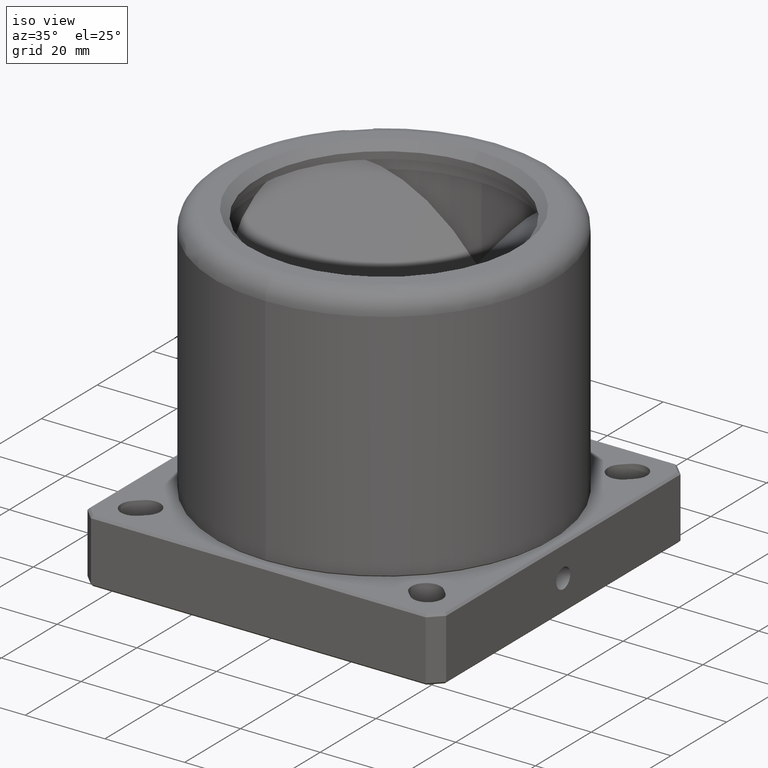
[diagram: clean part render]
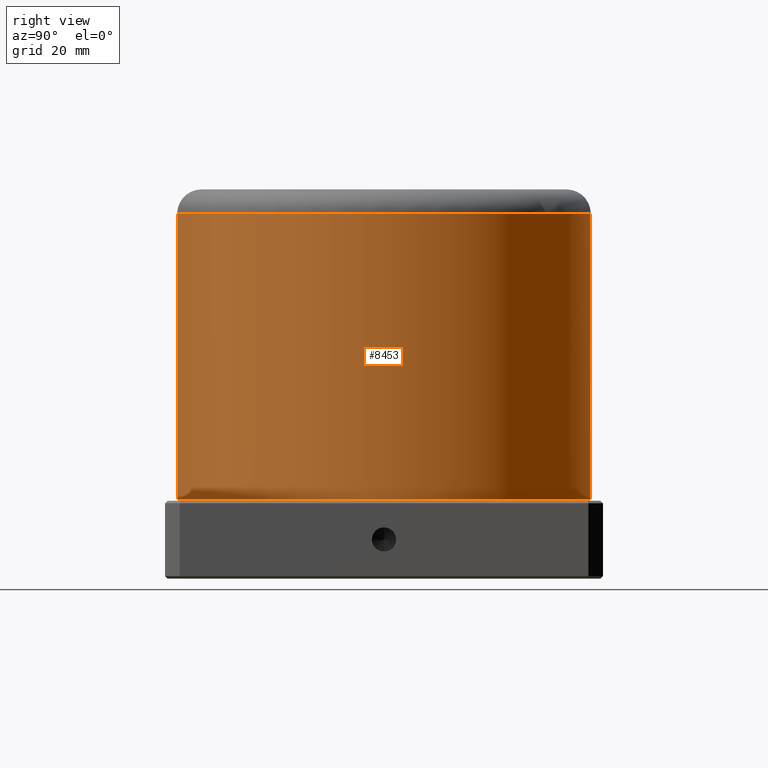
[diagram: tour spotlight — one face highlighted and labeled with its STEP entity id]
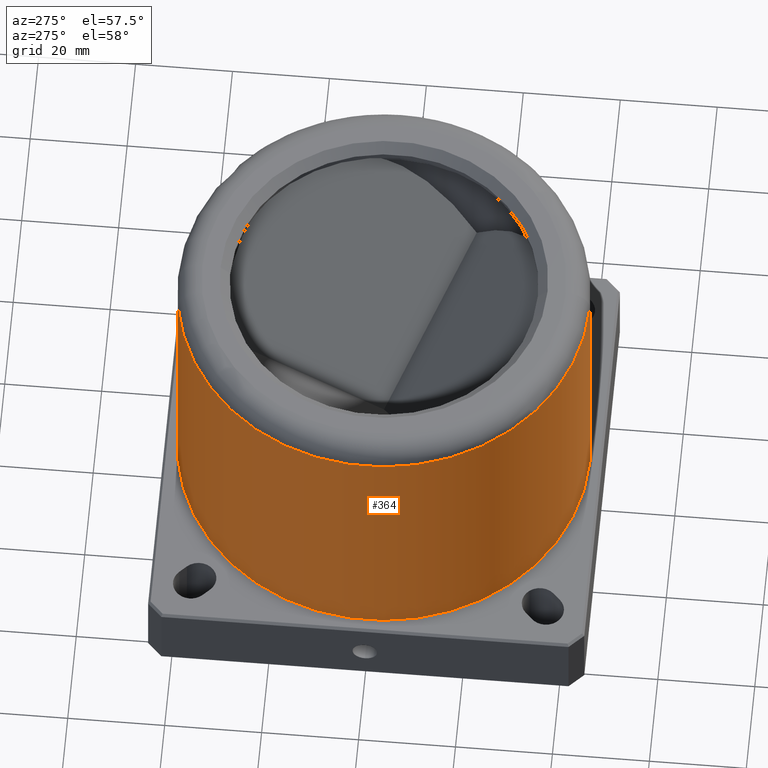
[diagram: tour spotlight — one face highlighted and labeled with its STEP entity id]
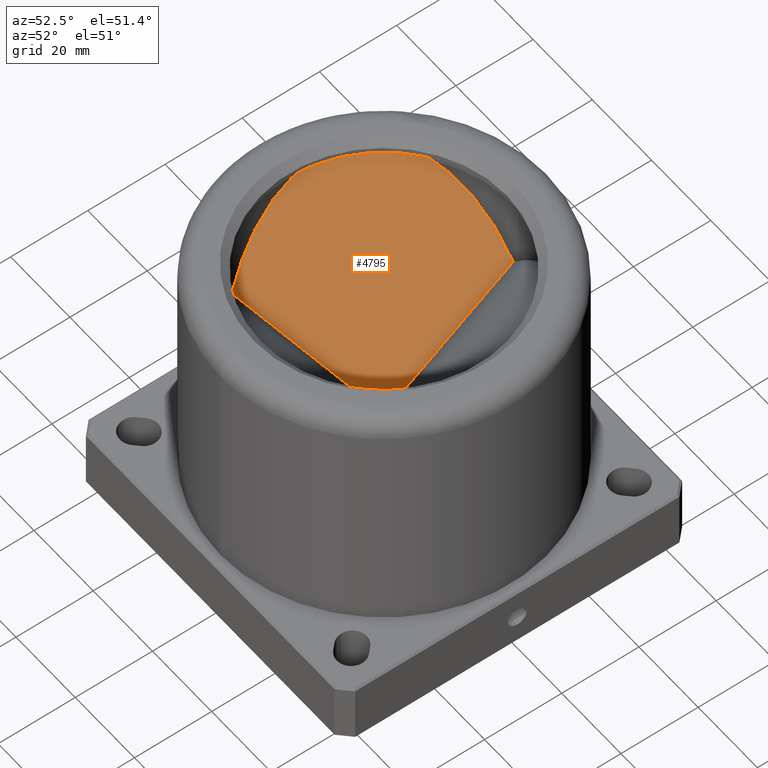
[diagram: tour spotlight — one face highlighted and labeled with its STEP entity id]
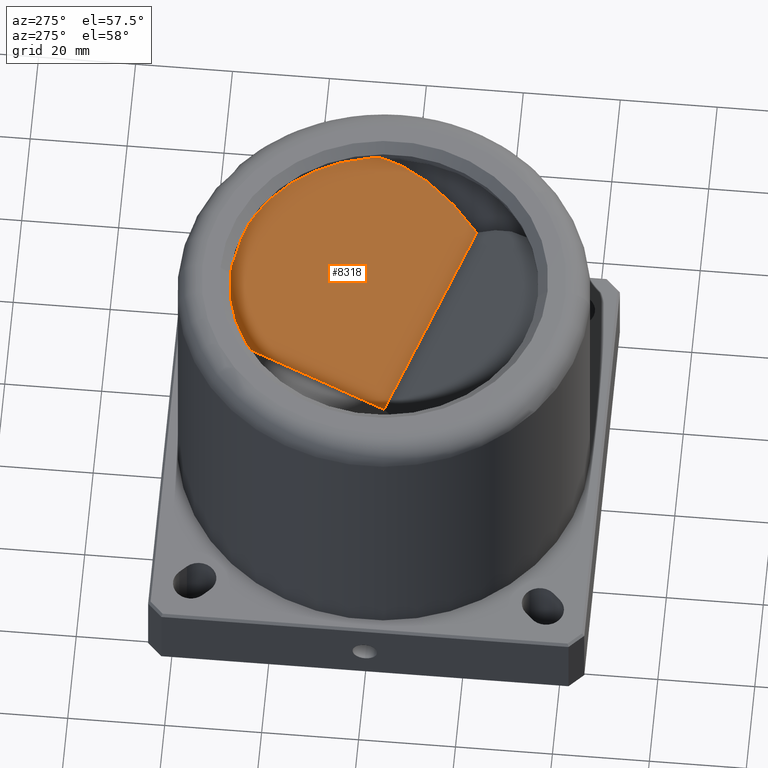
[diagram: tour spotlight — one face highlighted and labeled with its STEP entity id]
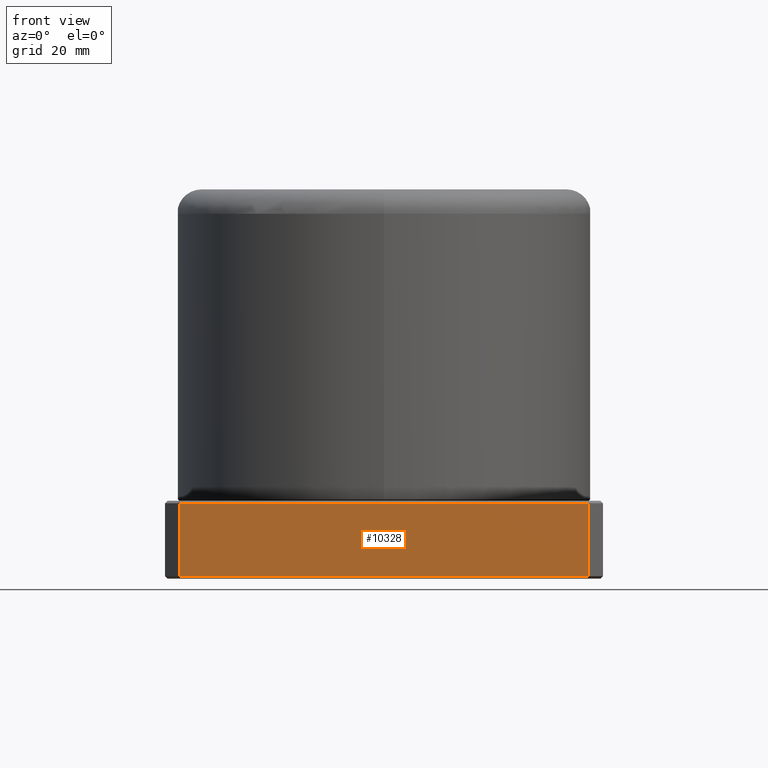
[diagram: tour spotlight — one face highlighted and labeled with its STEP entity id]
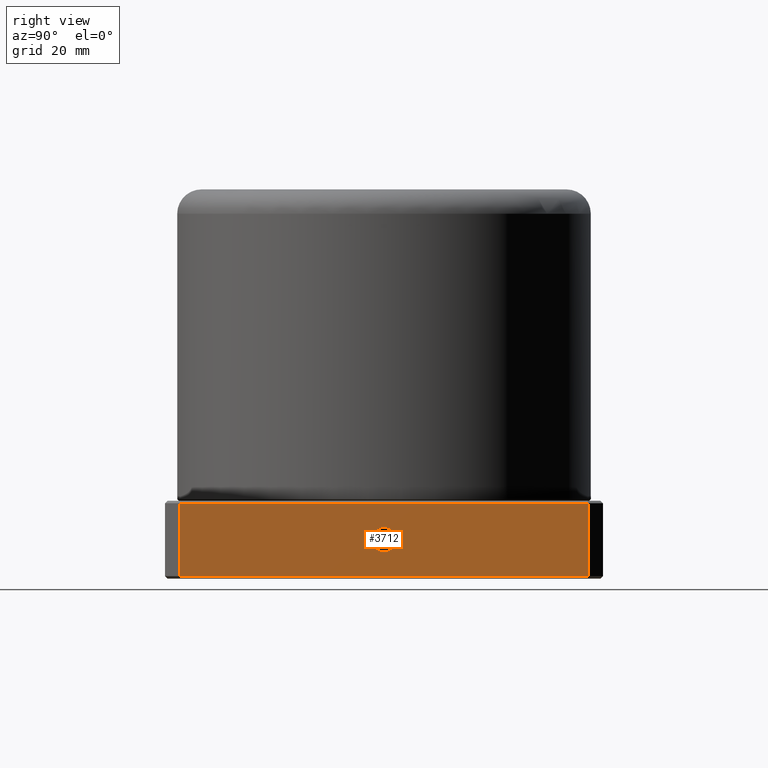
[diagram: tour spotlight — one face highlighted and labeled with its STEP entity id]
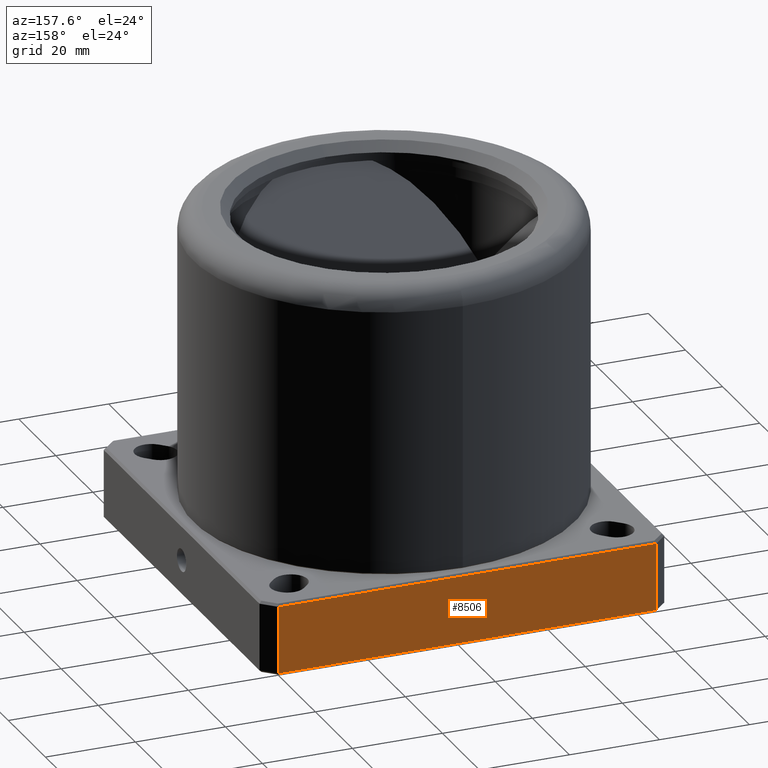
[diagram: tour spotlight — one face highlighted and labeled with its STEP entity id]
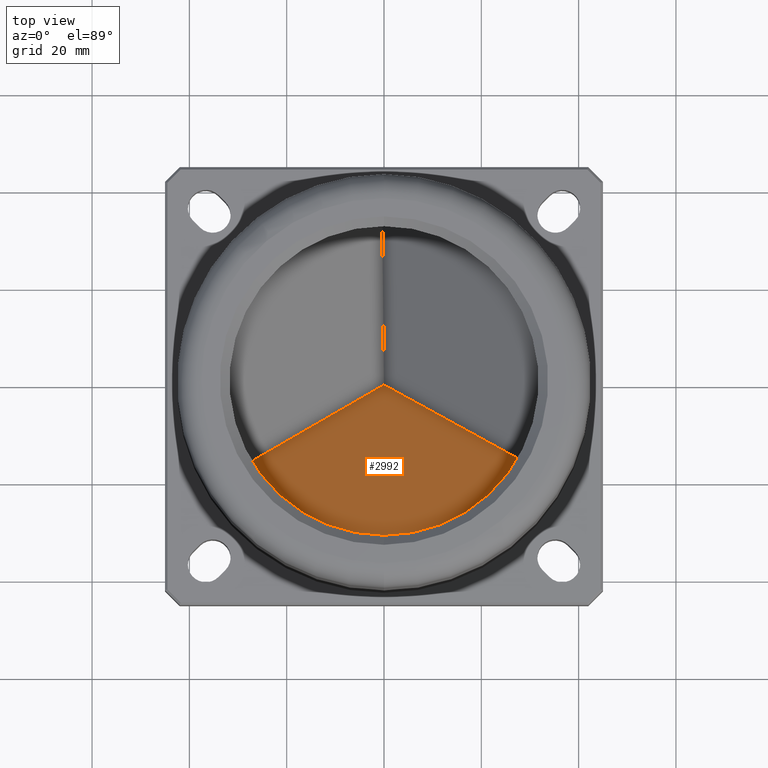
[diagram: tour spotlight — one face highlighted and labeled with its STEP entity id]
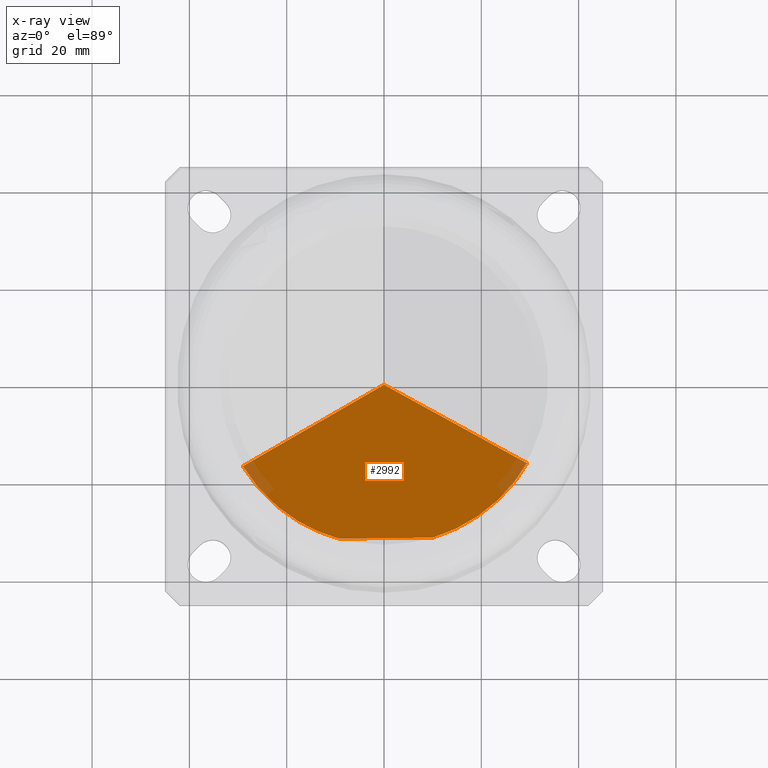
[diagram: x-ray of the same camera — body ghosted, this tour face saturated]
A machine part: a face-by-face anatomy tour. The part has 274 B-rep faces; the first image is the clean iso view, then the 8 largest visible faces are spotlighted one at a time (largest first), each with its STEP entity span.

Face 1 — right view, entity #8453. In plain terms, the highlighted cylindrical surface (partial cylindrical patch) has radius 42.5 mm, axis along (-0, 0, -1).
Definition (entity closure, byte-faithful):
#455 = CARTESIAN_POINT ( 'NONE',  ( 1.600526984571186100E-013, -42.50000000000000000, 75.00000000000000000 ) ) ;
#605 = FACE_OUTER_BOUND ( 'NONE', #8560, .T. ) ;
#793 = ORIENTED_EDGE ( 'NONE', *, *, #6251, .T. ) ;
#1153 = VECTOR ( 'NONE', #7587, 1000.000000000000000 ) ;
#1464 = LINE ( 'NONE', #9392, #1153 ) ;
#1512 = CARTESIAN_POINT ( 'NONE',  ( -1.636472806285996600E-013, 42.50000000000000000, 16.29999999999999400 ) ) ;
#1969 = CARTESIAN_POINT ( 'NONE',  ( 1.576088200241625000E-013, -42.50000000000000000, 16.29999999999999400 ) ) ;
#2487 = EDGE_CURVE ( 'NONE', #10906, #6907, #1464, .T. ) ;
#2698 = AXIS2_PLACEMENT_3D ( 'NONE', #3364, #9722, #4293 ) ;
#2843 = DIRECTION ( 'NONE',  ( -8.326672684688669100E-017, -0.0000000000000000000, -1.000000000000000000 ) ) ;
#2852 = AXIS2_PLACEMENT_3D ( 'NONE', #10834, #6295, #5438 ) ;
#3099 = ORIENTED_EDGE ( 'NONE', *, *, #9544, .T. ) ;
#3364 = CARTESIAN_POINT ( 'NONE',  ( -1.638795070508522800E-015, 2.316515400426250000E-015, 16.29999999999999400 ) ) ;
#4293 = DIRECTION ( 'NONE',  ( 3.747002708109906500E-015, -1.000000000000000000, 0.0000000000000000000 ) ) ;
#5245 = AXIS2_PLACEMENT_3D ( 'NONE', #8223, #2843, #9178 ) ;
#5438 = DIRECTION ( 'NONE',  ( 3.747002708109906500E-015, -1.000000000000000000, 0.0000000000000000000 ) ) ;
#6054 = VERTEX_POINT ( 'NONE', #455 ) ;
#6251 = EDGE_CURVE ( 'NONE', #10906, #6054, #8670, .T. ) ;
#6295 = DIRECTION ( 'NONE',  ( -8.326672684688669100E-017, 0.0000000000000000000, -1.000000000000000000 ) ) ;
#6907 = VERTEX_POINT ( 'NONE', #1512 ) ;
#7163 = ORIENTED_EDGE ( 'NONE', *, *, #2487, .F. ) ;
#7587 = DIRECTION ( 'NONE',  ( -8.326672684688669100E-017, 0.0000000000000000000, -1.000000000000000000 ) ) ;
#7891 = VECTOR ( 'NONE', #8895, 1000.000000000000000 ) ;
#7970 = CARTESIAN_POINT ( 'NONE',  ( 1.587134862108654000E-013, -42.50000000000000000, 29.56659793814429800 ) ) ;
#8223 = CARTESIAN_POINT ( 'NONE',  ( 3.248961795403726700E-015, 2.316515400426250000E-015, 75.00000000000000000 ) ) ;
#8346 = EDGE_CURVE ( 'NONE', #8792, #6907, #10838, .T. ) ;
#8453 = ADVANCED_FACE ( 'NONE', ( #605 ), #11276, .T. ) ;
#8560 = EDGE_LOOP ( 'NONE', ( #7163, #793, #3099, #8763 ) ) ;
#8670 = CIRCLE ( 'NONE', #5245, 42.50000000000000000 ) ;
#8763 = ORIENTED_EDGE ( 'NONE', *, *, #8346, .T. ) ;
#8792 = VERTEX_POINT ( 'NONE', #1969 ) ;
#8895 = DIRECTION ( 'NONE',  ( -8.326672684688669100E-017, 0.0000000000000000000, -1.000000000000000000 ) ) ;
#9178 = DIRECTION ( 'NONE',  ( -3.747002708109906500E-015, 1.000000000000000000, 0.0000000000000000000 ) ) ;
#9392 = CARTESIAN_POINT ( 'NONE',  ( -1.649864928748528700E-013, 42.50000000000000000, 29.56659793814429800 ) ) ;
#9544 = EDGE_CURVE ( 'NONE', #6054, #8792, #11475, .T. ) ;
#9722 = DIRECTION ( 'NONE',  ( 8.326672684688669100E-017, -0.0000000000000000000, 1.000000000000000000 ) ) ;
#10469 = CARTESIAN_POINT ( 'NONE',  ( -1.636472806285996600E-013, 42.50000000000000000, 75.00000000000000000 ) ) ;
#10834 = CARTESIAN_POINT ( 'NONE',  ( -5.341288838055910000E-016, 2.316515400426250000E-015, 29.56659793814429800 ) ) ;
#10838 = CIRCLE ( 'NONE', #2698, 42.50000000000000000 ) ;
#10906 = VERTEX_POINT ( 'NONE', #10469 ) ;
#11276 = CYLINDRICAL_SURFACE ( 'NONE', #2852, 42.50000000000000000 ) ;
#11475 = LINE ( 'NONE', #7970, #7891 ) ;

Face 2 — auxiliary view, entity #364. In plain terms, the highlighted cylindrical surface (partial cylindrical patch) has radius 42.5 mm, axis along (-0, 0, -1).
Definition (entity closure, byte-faithful):
#154 = AXIS2_PLACEMENT_3D ( 'NONE', #4048, #3873, #4657 ) ;
#299 = EDGE_LOOP ( 'NONE', ( #2162, #8070, #7524, #995 ) ) ;
#364 = ADVANCED_FACE ( 'NONE', ( #2329 ), #10555, .T. ) ;
#455 = CARTESIAN_POINT ( 'NONE',  ( 1.600526984571186100E-013, -42.50000000000000000, 75.00000000000000000 ) ) ;
#861 = AXIS2_PLACEMENT_3D ( 'NONE', #7410, #2000, #8316 ) ;
#995 = ORIENTED_EDGE ( 'NONE', *, *, #9544, .F. ) ;
#1153 = VECTOR ( 'NONE', #7587, 1000.000000000000000 ) ;
#1464 = LINE ( 'NONE', #9392, #1153 ) ;
#1512 = CARTESIAN_POINT ( 'NONE',  ( -1.636472806285996600E-013, 42.50000000000000000, 16.29999999999999400 ) ) ;
#1713 = EDGE_CURVE ( 'NONE', #6054, #10906, #6975, .T. ) ;
#1969 = CARTESIAN_POINT ( 'NONE',  ( 1.576088200241625000E-013, -42.50000000000000000, 16.29999999999999400 ) ) ;
#2000 = DIRECTION ( 'NONE',  ( 8.326672684688669100E-017, -0.0000000000000000000, 1.000000000000000000 ) ) ;
#2162 = ORIENTED_EDGE ( 'NONE', *, *, #1713, .T. ) ;
#2329 = FACE_OUTER_BOUND ( 'NONE', #299, .T. ) ;
#2487 = EDGE_CURVE ( 'NONE', #10906, #6907, #1464, .T. ) ;
#3873 = DIRECTION ( 'NONE',  ( -8.326672684688669100E-017, 0.0000000000000000000, -1.000000000000000000 ) ) ;
#4048 = CARTESIAN_POINT ( 'NONE',  ( -5.341288838055910000E-016, 2.316515400426250000E-015, 29.56659793814429800 ) ) ;
#4657 = DIRECTION ( 'NONE',  ( 3.747002708109906500E-015, -1.000000000000000000, 0.0000000000000000000 ) ) ;
#6054 = VERTEX_POINT ( 'NONE', #455 ) ;
#6431 = DIRECTION ( 'NONE',  ( -8.326672684688669100E-017, -0.0000000000000000000, -1.000000000000000000 ) ) ;
#6473 = CARTESIAN_POINT ( 'NONE',  ( 3.248961795403726700E-015, 2.316515400426250000E-015, 75.00000000000000000 ) ) ;
#6907 = VERTEX_POINT ( 'NONE', #1512 ) ;
#6975 = CIRCLE ( 'NONE', #7224, 42.50000000000000000 ) ;
#7224 = AXIS2_PLACEMENT_3D ( 'NONE', #6473, #6431, #9061 ) ;
#7410 = CARTESIAN_POINT ( 'NONE',  ( -1.638795070508522800E-015, 2.316515400426250000E-015, 16.29999999999999400 ) ) ;
#7524 = ORIENTED_EDGE ( 'NONE', *, *, #9864, .T. ) ;
#7587 = DIRECTION ( 'NONE',  ( -8.326672684688669100E-017, 0.0000000000000000000, -1.000000000000000000 ) ) ;
#7891 = VECTOR ( 'NONE', #8895, 1000.000000000000000 ) ;
#7970 = CARTESIAN_POINT ( 'NONE',  ( 1.587134862108654000E-013, -42.50000000000000000, 29.56659793814429800 ) ) ;
#8070 = ORIENTED_EDGE ( 'NONE', *, *, #2487, .T. ) ;
#8316 = DIRECTION ( 'NONE',  ( 3.747002708109906500E-015, -1.000000000000000000, 0.0000000000000000000 ) ) ;
#8446 = CIRCLE ( 'NONE', #861, 42.50000000000000000 ) ;
#8792 = VERTEX_POINT ( 'NONE', #1969 ) ;
#8895 = DIRECTION ( 'NONE',  ( -8.326672684688669100E-017, 0.0000000000000000000, -1.000000000000000000 ) ) ;
#9061 = DIRECTION ( 'NONE',  ( -3.747002708109906500E-015, 1.000000000000000000, 0.0000000000000000000 ) ) ;
#9392 = CARTESIAN_POINT ( 'NONE',  ( -1.649864928748528700E-013, 42.50000000000000000, 29.56659793814429800 ) ) ;
#9544 = EDGE_CURVE ( 'NONE', #6054, #8792, #11475, .T. ) ;
#9864 = EDGE_CURVE ( 'NONE', #6907, #8792, #8446, .T. ) ;
#10469 = CARTESIAN_POINT ( 'NONE',  ( -1.636472806285996600E-013, 42.50000000000000000, 75.00000000000000000 ) ) ;
#10555 = CYLINDRICAL_SURFACE ( 'NONE', #154, 42.50000000000000000 ) ;
#10906 = VERTEX_POINT ( 'NONE', #10469 ) ;
#11475 = LINE ( 'NONE', #7970, #7891 ) ;

Face 3 — auxiliary view, entity #4795. In plain terms, the highlighted planar face has unit normal (-0.7115, 0.4006, -0.5774).
Definition (entity closure, byte-faithful):
#40 = CARTESIAN_POINT ( 'NONE',  ( -29.04481671781240900, -17.18898257107341400, 54.13513874999981100 ) ) ;
#302 = EDGE_LOOP ( 'NONE', ( #4207, #5177, #10832, #8193, #8947 ) ) ;
#410 = PLANE ( 'NONE',  #600 ) ;
#600 = AXIS2_PLACEMENT_3D ( 'NONE', #10437, #5016, #11339 ) ;
#1399 = LINE ( 'NONE', #2149, #3812 ) ;
#2017 = CARTESIAN_POINT ( 'NONE',  ( -32.91943128433013000, 7.441340196246187600, 76.00000000000019900 ) ) ;
#2041 = CARTESIAN_POINT ( 'NONE',  ( -17.15575778649403600, 30.34503603800237700, 72.46666782911528100 ) ) ;
#2054 = CARTESIAN_POINT ( 'NONE',  ( -33.48711833384477600, -9.682672310451856400, 64.81774969921255500 ) ) ;
#2149 = CARTESIAN_POINT ( 'NONE',  ( 7.026666928102499400, 4.158444397613271400, 24.49677123489438200 ) ) ;
#2165 = VERTEX_POINT ( 'NONE', #5929 ) ;
#2195 = DIRECTION ( 'NONE',  ( -0.7026664028910576400, -0.4158442681845549400, 0.5773503882965646000 ) ) ;
#2238 = VERTEX_POINT ( 'NONE', #11238 ) ;
#2320 = EDGE_CURVE ( 'NONE', #8745, #4623, #1399, .T. ) ;
#2533 = CARTESIAN_POINT ( 'NONE',  ( -28.17621082731876900, 15.86519007942631500, 76.00000000000012800 ) ) ;
#2935 = CARTESIAN_POINT ( 'NONE',  ( -34.84256300213510100, -1.066321161170799200, 72.46666782911543700 ) ) ;
#3277 = CARTESIAN_POINT ( 'NONE',  ( 0.08798502450694575800, -8.164494262475354700, 24.49677123489438900 ) ) ;
#3800 = CARTESIAN_POINT ( 'NONE',  ( -9.085493395253383400, 33.65404949097983000, 64.81774969921238500 ) ) ;
#3812 = VECTOR ( 'NONE', #2195, 1000.000000000000000 ) ;
#4196 = DIRECTION ( 'NONE',  ( -0.008798498820444920400, 0.8164490893817651900, 0.5773503882965637100 ) ) ;
#4207 = ORIENTED_EDGE ( 'NONE', *, *, #6315, .T. ) ;
#4623 = VERTEX_POINT ( 'NONE', #40 ) ;
#4795 = ADVANCED_FACE ( 'NONE', ( #7445 ), #410, .F. ) ;
#5016 = DIRECTION ( 'NONE',  ( -0.7114650484862067300, 0.4006049038417000600, -0.5773501500826876400 ) ) ;
#5177 = ORIENTED_EDGE ( 'NONE', *, *, #8040, .T. ) ;
#5267 =( BOUNDED_CURVE ( )  B_SPLINE_CURVE ( 3, ( #8313, #3800, #2041, #8357 ),
 .UNSPECIFIED., .F., .F. ) 
 B_SPLINE_CURVE_WITH_KNOTS ( ( 4, 4 ),
 ( 2.094395102393196200, 2.851080815980052500 ),
 .UNSPECIFIED. ) 
 CURVE ( )  GEOMETRIC_REPRESENTATION_ITEM ( )  RATIONAL_B_SPLINE_CURVE ( ( 1.000000000000000000, 0.9528520190117353300, 0.9528520190117353300, 1.000000000000000000 ) ) 
 REPRESENTATION_ITEM ( '' )  );
#5929 = CARTESIAN_POINT ( 'NONE',  ( -0.3636872128513077300, 33.74804041142549200, 54.13513874999979700 ) ) ;
#6154 = DIRECTION ( 'NONE',  ( -0.4906387508252462700, -0.8713630794270789100, 6.154415150397284200E-015 ) ) ;
#6315 = EDGE_CURVE ( 'NONE', #2165, #2238, #5267, .T. ) ;
#6553 = CARTESIAN_POINT ( 'NONE',  ( -32.91943128433013000, 7.441340196246187600, 76.00000000000019900 ) ) ;
#6933 =( BOUNDED_CURVE ( )  B_SPLINE_CURVE ( 3, ( #2017, #2935, #2054, #8382 ),
 .UNSPECIFIED., .F., .T. ) 
 B_SPLINE_CURVE_WITH_KNOTS ( ( 4, 4 ),
 ( 3.432104491199526200, 4.188790204786387900 ),
 .UNSPECIFIED. ) 
 CURVE ( )  GEOMETRIC_REPRESENTATION_ITEM ( )  RATIONAL_B_SPLINE_CURVE ( ( 1.000000000000000000, 0.9528520190117346600, 0.9528520190117346600, 1.000000000000000000 ) ) 
 REPRESENTATION_ITEM ( '' )  );
#7445 = FACE_OUTER_BOUND ( 'NONE', #302, .T. ) ;
#7517 = EDGE_CURVE ( 'NONE', #8745, #2165, #8968, .T. ) ;
#7823 = VECTOR ( 'NONE', #6154, 1000.000000000000100 ) ;
#8040 = EDGE_CURVE ( 'NONE', #2238, #8914, #10268, .T. ) ;
#8090 = VECTOR ( 'NONE', #4196, 1000.000000000000100 ) ;
#8193 = ORIENTED_EDGE ( 'NONE', *, *, #2320, .F. ) ;
#8313 = CARTESIAN_POINT ( 'NONE',  ( -0.3636872128513077300, 33.74804041142549200, 54.13513874999979700 ) ) ;
#8357 = CARTESIAN_POINT ( 'NONE',  ( -23.43299037030781300, 24.28903996260578400, 76.00000000000007100 ) ) ;
#8382 = CARTESIAN_POINT ( 'NONE',  ( -29.04481671781240900, -17.18898257107341400, 54.13513874999981100 ) ) ;
#8745 = VERTEX_POINT ( 'NONE', #8938 ) ;
#8906 = EDGE_CURVE ( 'NONE', #8914, #4623, #6933, .T. ) ;
#8914 = VERTEX_POINT ( 'NONE', #6553 ) ;
#8938 = CARTESIAN_POINT ( 'NONE',  ( 1.351145994468199500E-014, -5.312580005793332200E-015, 30.27027749999981800 ) ) ;
#8947 = ORIENTED_EDGE ( 'NONE', *, *, #7517, .T. ) ;
#8968 = LINE ( 'NONE', #3277, #8090 ) ;
#10268 = LINE ( 'NONE', #2533, #7823 ) ;
#10437 = CARTESIAN_POINT ( 'NONE',  ( 7.114650484862088400, -4.006049038417007300, 18.72326735192899600 ) ) ;
#10832 = ORIENTED_EDGE ( 'NONE', *, *, #8906, .T. ) ;
#11238 = CARTESIAN_POINT ( 'NONE',  ( -23.43299037030781300, 24.28903996260578400, 76.00000000000007100 ) ) ;
#11339 = DIRECTION ( 'NONE',  ( 0.3221115584783602000, -0.5442830103532363400, -0.7745967651207050800 ) ) ;

Face 4 — auxiliary view, entity #8318. In plain terms, the highlighted planar face has unit normal (0.7027, 0.4158, -0.5774).
Definition (entity closure, byte-faithful):
#50 = CARTESIAN_POINT ( 'NONE',  ( 27.82776305831099300, 16.46871931913138800, 75.99999999999980100 ) ) ;
#1042 = CARTESIAN_POINT ( 'NONE',  ( 8.358118969550524500, 33.84203133187114800, 64.81774969921208700 ) ) ;
#1398 = EDGE_CURVE ( 'NONE', #2915, #3820, #9078, .T. ) ;
#1526 = EDGE_LOOP ( 'NONE', ( #6653, #5701, #8107, #4819, #8651 ) ) ;
#1613 = EDGE_CURVE ( 'NONE', #8818, #2165, #5597, .T. ) ;
#2165 = VERTEX_POINT ( 'NONE', #5929 ) ;
#2425 = DIRECTION ( 'NONE',  ( 0.7026665478506386500, 0.4158443539729321200, -0.5773501500826868600 ) ) ;
#2616 = FACE_OUTER_BOUND ( 'NONE', #1526, .T. ) ;
#2624 = CARTESIAN_POINT ( 'NONE',  ( -0.3636872128513077300, 33.74804041142549200, 54.13513874999979700 ) ) ;
#2660 = CARTESIAN_POINT ( 'NONE',  ( 22.90410529031584700, 24.78839367224358300, 75.99999999999980100 ) ) ;
#2915 = VERTEX_POINT ( 'NONE', #10526 ) ;
#3277 = CARTESIAN_POINT ( 'NONE',  ( 0.08798502450694575800, -8.164494262475354700, 24.49677123489438900 ) ) ;
#3328 = AXIS2_PLACEMENT_3D ( 'NONE', #7816, #2425, #8744 ) ;
#3357 = CARTESIAN_POINT ( 'NONE',  ( 16.49782028690011500, 30.70770527339444200, 72.46666782911488300 ) ) ;
#3815 = CARTESIAN_POINT ( 'NONE',  ( 22.90410529031584700, 24.78839367224358300, 75.99999999999980100 ) ) ;
#3820 = VERTEX_POINT ( 'NONE', #5407 ) ;
#3930 = CARTESIAN_POINT ( 'NONE',  ( 34.85745098091129500, -0.3151959547250896600, 72.46666782911488300 ) ) ;
#4196 = DIRECTION ( 'NONE',  ( -0.008798498820444920400, 0.8164490893817651900, 0.5773503882965637100 ) ) ;
#4212 = PLANE ( 'NONE',  #3328 ) ;
#4452 = CARTESIAN_POINT ( 'NONE',  ( 33.68800849703387000, -8.958756659284912200, 64.81774969921215800 ) ) ;
#4819 = ORIENTED_EDGE ( 'NONE', *, *, #7517, .F. ) ;
#5347 = LINE ( 'NONE', #50, #11458 ) ;
#5407 = CARTESIAN_POINT ( 'NONE',  ( 32.75142082630610200, 8.149044966019158000, 75.99999999999980100 ) ) ;
#5496 = CARTESIAN_POINT ( 'NONE',  ( 32.75142082630610200, 8.149044966019158000, 75.99999999999980100 ) ) ;
#5597 =( BOUNDED_CURVE ( )  B_SPLINE_CURVE ( 3, ( #2660, #3357, #1042, #2624 ),
 .UNSPECIFIED., .F., .T. ) 
 B_SPLINE_CURVE_WITH_KNOTS ( ( 4, 4 ),
 ( 3.432104491199552900, 4.188790204786391400 ),
 .UNSPECIFIED. ) 
 CURVE ( )  GEOMETRIC_REPRESENTATION_ITEM ( )  RATIONAL_B_SPLINE_CURVE ( ( 1.000000000000000000, 0.9528520190117373300, 0.9528520190117373300, 1.000000000000000000 ) ) 
 REPRESENTATION_ITEM ( '' )  );
#5701 = ORIENTED_EDGE ( 'NONE', *, *, #9707, .T. ) ;
#5929 = CARTESIAN_POINT ( 'NONE',  ( -0.3636872128513077300, 33.74804041142549200, 54.13513874999979700 ) ) ;
#6127 = EDGE_CURVE ( 'NONE', #8745, #2915, #9831, .T. ) ;
#6653 = ORIENTED_EDGE ( 'NONE', *, *, #1398, .T. ) ;
#7290 = DIRECTION ( 'NONE',  ( -0.5093031872910677200, 0.8605871620092642200, -2.870880753558112200E-016 ) ) ;
#7517 = EDGE_CURVE ( 'NONE', #8745, #2165, #8968, .T. ) ;
#7816 = CARTESIAN_POINT ( 'NONE',  ( -7.026665478506369100, -4.158443539729329800, 18.72326735192898900 ) ) ;
#8090 = VECTOR ( 'NONE', #4196, 1000.000000000000100 ) ;
#8107 = ORIENTED_EDGE ( 'NONE', *, *, #1613, .T. ) ;
#8318 = ADVANCED_FACE ( 'NONE', ( #2616 ), #4212, .F. ) ;
#8651 = ORIENTED_EDGE ( 'NONE', *, *, #6127, .T. ) ;
#8744 = DIRECTION ( 'NONE',  ( -0.4968601271452831000, -0.2940462716200873400, -0.8164966651490372900 ) ) ;
#8745 = VERTEX_POINT ( 'NONE', #8938 ) ;
#8818 = VERTEX_POINT ( 'NONE', #3815 ) ;
#8938 = CARTESIAN_POINT ( 'NONE',  ( 1.351145994468199500E-014, -5.312580005793332200E-015, 30.27027749999981800 ) ) ;
#8968 = LINE ( 'NONE', #3277, #8090 ) ;
#9078 =( BOUNDED_CURVE ( )  B_SPLINE_CURVE ( 3, ( #11098, #4452, #3930, #5496 ),
 .UNSPECIFIED., .F., .T. ) 
 B_SPLINE_CURVE_WITH_KNOTS ( ( 4, 4 ),
 ( 2.094395102393198400, 2.851080815980032500 ),
 .UNSPECIFIED. ) 
 CURVE ( )  GEOMETRIC_REPRESENTATION_ITEM ( )  RATIONAL_B_SPLINE_CURVE ( ( 1.000000000000000000, 0.9528520190117379900, 0.9528520190117379900, 1.000000000000000000 ) ) 
 REPRESENTATION_ITEM ( '' )  );
#9707 = EDGE_CURVE ( 'NONE', #3820, #8818, #5347, .T. ) ;
#9831 = LINE ( 'NONE', #9958, #11387 ) ;
#9958 = CARTESIAN_POINT ( 'NONE',  ( -7.114651952609404100, 4.006049864862069000, 24.49677123489438600 ) ) ;
#9993 = DIRECTION ( 'NONE',  ( 0.7114649017115024500, -0.4006048211972094700, 0.5773503882965647100 ) ) ;
#10526 = CARTESIAN_POINT ( 'NONE',  ( 29.40850393066412500, -16.55905784035182300, 54.13513874999981100 ) ) ;
#11098 = CARTESIAN_POINT ( 'NONE',  ( 29.40850393066412500, -16.55905784035182300, 54.13513874999981100 ) ) ;
#11387 = VECTOR ( 'NONE', #9993, 1000.000000000000000 ) ;
#11458 = VECTOR ( 'NONE', #7290, 1000.000000000000200 ) ;

Face 5 — front view, entity #10328. In plain terms, the highlighted planar face has unit normal (0, 1, 0).
Definition (entity closure, byte-faithful):
#359 = AXIS2_PLACEMENT_3D ( 'NONE', #10132, #4716, #11036 ) ;
#763 = CARTESIAN_POINT ( 'NONE',  ( 45.00000000000000000, -45.00000000000000000, 0.5000000000000000000 ) ) ;
#803 = DIRECTION ( 'NONE',  ( 1.000000000000000000, 0.0000000000000000000, 0.0000000000000000000 ) ) ;
#953 = VERTEX_POINT ( 'NONE', #9387 ) ;
#1178 = EDGE_CURVE ( 'NONE', #7745, #6122, #3064, .T. ) ;
#1494 = LINE ( 'NONE', #5700, #3618 ) ;
#1709 = VECTOR ( 'NONE', #8332, 1000.000000000000000 ) ;
#2688 = CARTESIAN_POINT ( 'NONE',  ( 42.00000000000000000, -45.00000000000000000, 0.5000000000000000000 ) ) ;
#2702 = ORIENTED_EDGE ( 'NONE', *, *, #1178, .T. ) ;
#3064 = LINE ( 'NONE', #763, #7851 ) ;
#3069 = EDGE_LOOP ( 'NONE', ( #6233, #2702, #3082, #3273 ) ) ;
#3082 = ORIENTED_EDGE ( 'NONE', *, *, #8862, .T. ) ;
#3273 = ORIENTED_EDGE ( 'NONE', *, *, #3565, .T. ) ;
#3346 = FACE_OUTER_BOUND ( 'NONE', #3069, .T. ) ;
#3565 = EDGE_CURVE ( 'NONE', #953, #6809, #4429, .T. ) ;
#3618 = VECTOR ( 'NONE', #7508, 1000.000000000000000 ) ;
#4171 = LINE ( 'NONE', #10123, #1709 ) ;
#4429 = LINE ( 'NONE', #5477, #11385 ) ;
#4716 = DIRECTION ( 'NONE',  ( 0.0000000000000000000, 1.000000000000000000, 0.0000000000000000000 ) ) ;
#5477 = CARTESIAN_POINT ( 'NONE',  ( -42.00000000000000000, -45.00000000000000000, 15.50000000000000000 ) ) ;
#5700 = CARTESIAN_POINT ( 'NONE',  ( -42.00000000000000000, -45.00000000000000000, 16.00000000000000000 ) ) ;
#6122 = VERTEX_POINT ( 'NONE', #2688 ) ;
#6233 = ORIENTED_EDGE ( 'NONE', *, *, #7215, .T. ) ;
#6443 = PLANE ( 'NONE',  #359 ) ;
#6809 = VERTEX_POINT ( 'NONE', #8597 ) ;
#7215 = EDGE_CURVE ( 'NONE', #6809, #7745, #1494, .T. ) ;
#7508 = DIRECTION ( 'NONE',  ( 0.0000000000000000000, 0.0000000000000000000, -1.000000000000000000 ) ) ;
#7745 = VERTEX_POINT ( 'NONE', #8580 ) ;
#7851 = VECTOR ( 'NONE', #803, 1000.000000000000000 ) ;
#8332 = DIRECTION ( 'NONE',  ( 0.0000000000000000000, 0.0000000000000000000, 1.000000000000000000 ) ) ;
#8580 = CARTESIAN_POINT ( 'NONE',  ( -42.00000000000000000, -45.00000000000000000, 0.5000000000000000000 ) ) ;
#8597 = CARTESIAN_POINT ( 'NONE',  ( -42.00000000000000000, -45.00000000000000000, 15.50000000000000000 ) ) ;
#8862 = EDGE_CURVE ( 'NONE', #6122, #953, #4171, .T. ) ;
#9122 = DIRECTION ( 'NONE',  ( -1.000000000000000000, 0.0000000000000000000, 0.0000000000000000000 ) ) ;
#9387 = CARTESIAN_POINT ( 'NONE',  ( 42.00000000000000000, -45.00000000000000000, 15.50000000000000000 ) ) ;
#10123 = CARTESIAN_POINT ( 'NONE',  ( 42.00000000000000000, -45.00000000000000000, 16.00000000000000000 ) ) ;
#10132 = CARTESIAN_POINT ( 'NONE',  ( 45.00000000000000000, -45.00000000000000000, 16.00000000000000000 ) ) ;
#10328 = ADVANCED_FACE ( 'NONE', ( #3346 ), #6443, .F. ) ;
#11036 = DIRECTION ( 'NONE',  ( 0.0000000000000000000, 0.0000000000000000000, 1.000000000000000000 ) ) ;
#11385 = VECTOR ( 'NONE', #9122, 1000.000000000000000 ) ;

Face 6 — right view, entity #3712. In plain terms, the highlighted planar face has unit normal (-1, 0, 0).
Definition (entity closure, byte-faithful):
#38 = DIRECTION ( 'NONE',  ( 0.0000000000000000000, 1.000000000000000000, 0.0000000000000000000 ) ) ;
#235 = PLANE ( 'NONE',  #3177 ) ;
#268 = CARTESIAN_POINT ( 'NONE',  ( 45.00000000000000000, 0.0000000000000000000, 8.000000000000000000 ) ) ;
#727 = DIRECTION ( 'NONE',  ( 0.0000000000000000000, 0.0000000000000000000, 1.000000000000000000 ) ) ;
#1172 = DIRECTION ( 'NONE',  ( 0.0000000000000000000, 0.0000000000000000000, -1.000000000000000000 ) ) ;
#1204 = AXIS2_PLACEMENT_3D ( 'NONE', #268, #6593, #1172 ) ;
#1776 = ORIENTED_EDGE ( 'NONE', *, *, #11262, .F. ) ;
#2475 = LINE ( 'NONE', #10917, #9414 ) ;
#2601 = CIRCLE ( 'NONE', #11693, 2.500000000000000400 ) ;
#2981 = ORIENTED_EDGE ( 'NONE', *, *, #11591, .T. ) ;
#3177 = AXIS2_PLACEMENT_3D ( 'NONE', #10594, #11504, #10073 ) ;
#3259 = VECTOR ( 'NONE', #11321, 1000.000000000000000 ) ;
#3712 = ADVANCED_FACE ( 'NONE', ( #9822, #5018 ), #235, .F. ) ;
#3920 = EDGE_CURVE ( 'NONE', #10774, #10085, #2475, .T. ) ;
#4005 = VERTEX_POINT ( 'NONE', #9213 ) ;
#4365 = CARTESIAN_POINT ( 'NONE',  ( 45.00000000000000000, -42.00000000000000000, 15.50000000000000000 ) ) ;
#4380 = LINE ( 'NONE', #9808, #11018 ) ;
#4757 = DIRECTION ( 'NONE',  ( 1.000000000000000000, 0.0000000000000000000, 0.0000000000000000000 ) ) ;
#5018 = FACE_OUTER_BOUND ( 'NONE', #8899, .T. ) ;
#5470 = ORIENTED_EDGE ( 'NONE', *, *, #3920, .T. ) ;
#5678 = CARTESIAN_POINT ( 'NONE',  ( 45.00000000000000000, -42.00000000000000000, 0.5000000000000000000 ) ) ;
#5990 = CARTESIAN_POINT ( 'NONE',  ( 45.00000000000000000, 42.00000000000000000, 0.5000000000000000000 ) ) ;
#6593 = DIRECTION ( 'NONE',  ( 1.000000000000000000, 0.0000000000000000000, 0.0000000000000000000 ) ) ;
#6644 = CARTESIAN_POINT ( 'NONE',  ( 45.00000000000000000, -42.00000000000000000, 16.00000000000000000 ) ) ;
#6779 = EDGE_CURVE ( 'NONE', #8037, #10774, #10503, .T. ) ;
#6839 = VECTOR ( 'NONE', #7607, 1000.000000000000000 ) ;
#7458 = EDGE_CURVE ( 'NONE', #8464, #8037, #9266, .T. ) ;
#7607 = DIRECTION ( 'NONE',  ( 0.0000000000000000000, -1.000000000000000000, 0.0000000000000000000 ) ) ;
#8037 = VERTEX_POINT ( 'NONE', #4365 ) ;
#8293 = VERTEX_POINT ( 'NONE', #11383 ) ;
#8464 = VERTEX_POINT ( 'NONE', #11776 ) ;
#8601 = ORIENTED_EDGE ( 'NONE', *, *, #7458, .T. ) ;
#8773 = CIRCLE ( 'NONE', #1204, 2.500000000000000400 ) ;
#8899 = EDGE_LOOP ( 'NONE', ( #9003, #5470, #2981, #8601 ) ) ;
#9003 = ORIENTED_EDGE ( 'NONE', *, *, #6779, .T. ) ;
#9213 = CARTESIAN_POINT ( 'NONE',  ( 45.00000000000000000, 3.061616997868382600E-016, 10.50000000000000000 ) ) ;
#9266 = LINE ( 'NONE', #10345, #6839 ) ;
#9414 = VECTOR ( 'NONE', #38, 1000.000000000000000 ) ;
#9808 = CARTESIAN_POINT ( 'NONE',  ( 45.00000000000000000, 42.00000000000000000, 16.00000000000000000 ) ) ;
#9822 = FACE_BOUND ( 'NONE', #10867, .T. ) ;
#10073 = DIRECTION ( 'NONE',  ( 0.0000000000000000000, 0.0000000000000000000, 1.000000000000000000 ) ) ;
#10085 = VERTEX_POINT ( 'NONE', #5990 ) ;
#10175 = CARTESIAN_POINT ( 'NONE',  ( 45.00000000000000000, 0.0000000000000000000, 8.000000000000000000 ) ) ;
#10345 = CARTESIAN_POINT ( 'NONE',  ( 45.00000000000000000, -42.00000000000000000, 15.50000000000000000 ) ) ;
#10503 = LINE ( 'NONE', #6644, #3259 ) ;
#10594 = CARTESIAN_POINT ( 'NONE',  ( 45.00000000000000000, -45.00000000000000000, 16.00000000000000000 ) ) ;
#10676 = EDGE_CURVE ( 'NONE', #4005, #8293, #2601, .T. ) ;
#10774 = VERTEX_POINT ( 'NONE', #5678 ) ;
#10867 = EDGE_LOOP ( 'NONE', ( #1776, #11254 ) ) ;
#10917 = CARTESIAN_POINT ( 'NONE',  ( 45.00000000000000000, -45.00000000000000000, 0.5000000000000000000 ) ) ;
#11018 = VECTOR ( 'NONE', #727, 1000.000000000000000 ) ;
#11083 = DIRECTION ( 'NONE',  ( 0.0000000000000000000, 0.0000000000000000000, -1.000000000000000000 ) ) ;
#11254 = ORIENTED_EDGE ( 'NONE', *, *, #10676, .F. ) ;
#11262 = EDGE_CURVE ( 'NONE', #8293, #4005, #8773, .T. ) ;
#11321 = DIRECTION ( 'NONE',  ( 0.0000000000000000000, 0.0000000000000000000, -1.000000000000000000 ) ) ;
#11383 = CARTESIAN_POINT ( 'NONE',  ( 45.00000000000000000, 0.0000000000000000000, 5.500000000000000000 ) ) ;
#11504 = DIRECTION ( 'NONE',  ( -1.000000000000000000, 0.0000000000000000000, 0.0000000000000000000 ) ) ;
#11591 = EDGE_CURVE ( 'NONE', #10085, #8464, #4380, .T. ) ;
#11693 = AXIS2_PLACEMENT_3D ( 'NONE', #10175, #4757, #11083 ) ;
#11776 = CARTESIAN_POINT ( 'NONE',  ( 45.00000000000000000, 42.00000000000000000, 15.50000000000000000 ) ) ;

Face 7 — auxiliary view, entity #8506. In plain terms, the highlighted planar face has unit normal (0, -1, 0).
Definition (entity closure, byte-faithful):
#291 = LINE ( 'NONE', #562, #9693 ) ;
#562 = CARTESIAN_POINT ( 'NONE',  ( -42.00000000000000000, 45.00000000000000000, 16.00000000000000000 ) ) ;
#593 = ORIENTED_EDGE ( 'NONE', *, *, #9623, .T. ) ;
#768 = EDGE_CURVE ( 'NONE', #3152, #9202, #291, .T. ) ;
#774 = DIRECTION ( 'NONE',  ( 0.0000000000000000000, 0.0000000000000000000, 1.000000000000000000 ) ) ;
#839 = CARTESIAN_POINT ( 'NONE',  ( 42.00000000000000000, 45.00000000000000000, 0.5000000000000000000 ) ) ;
#871 = DIRECTION ( 'NONE',  ( -1.000000000000000000, 0.0000000000000000000, 0.0000000000000000000 ) ) ;
#1368 = VERTEX_POINT ( 'NONE', #839 ) ;
#1665 = VERTEX_POINT ( 'NONE', #4283 ) ;
#1902 = CARTESIAN_POINT ( 'NONE',  ( 45.00000000000000000, 45.00000000000000000, 16.00000000000000000 ) ) ;
#2671 = VECTOR ( 'NONE', #11589, 1000.000000000000000 ) ;
#2830 = DIRECTION ( 'NONE',  ( 0.0000000000000000000, 0.0000000000000000000, -1.000000000000000000 ) ) ;
#3152 = VERTEX_POINT ( 'NONE', #5598 ) ;
#3710 = PLANE ( 'NONE',  #8909 ) ;
#4283 = CARTESIAN_POINT ( 'NONE',  ( 42.00000000000000000, 45.00000000000000000, 15.50000000000000000 ) ) ;
#4508 = EDGE_CURVE ( 'NONE', #9202, #1665, #9922, .T. ) ;
#4974 = ORIENTED_EDGE ( 'NONE', *, *, #6112, .T. ) ;
#5029 = VECTOR ( 'NONE', #871, 1000.000000000000000 ) ;
#5598 = CARTESIAN_POINT ( 'NONE',  ( -42.00000000000000000, 45.00000000000000000, 0.5000000000000000000 ) ) ;
#5936 = EDGE_LOOP ( 'NONE', ( #593, #4974, #11323, #6021 ) ) ;
#6021 = ORIENTED_EDGE ( 'NONE', *, *, #4508, .T. ) ;
#6112 = EDGE_CURVE ( 'NONE', #1368, #3152, #9538, .T. ) ;
#6990 = CARTESIAN_POINT ( 'NONE',  ( -42.00000000000000000, 45.00000000000000000, 15.50000000000000000 ) ) ;
#7686 = FACE_OUTER_BOUND ( 'NONE', #5936, .T. ) ;
#8071 = DIRECTION ( 'NONE',  ( 0.0000000000000000000, 0.0000000000000000000, -1.000000000000000000 ) ) ;
#8215 = DIRECTION ( 'NONE',  ( 0.0000000000000000000, -1.000000000000000000, 0.0000000000000000000 ) ) ;
#8506 = ADVANCED_FACE ( 'NONE', ( #7686 ), #3710, .F. ) ;
#8880 = VECTOR ( 'NONE', #8071, 1000.000000000000000 ) ;
#8909 = AXIS2_PLACEMENT_3D ( 'NONE', #1902, #8215, #2830 ) ;
#9202 = VERTEX_POINT ( 'NONE', #6990 ) ;
#9538 = LINE ( 'NONE', #11752, #5029 ) ;
#9623 = EDGE_CURVE ( 'NONE', #1665, #1368, #11336, .T. ) ;
#9693 = VECTOR ( 'NONE', #774, 1000.000000000000000 ) ;
#9786 = CARTESIAN_POINT ( 'NONE',  ( 42.00000000000000000, 45.00000000000000000, 15.50000000000000000 ) ) ;
#9922 = LINE ( 'NONE', #9786, #2671 ) ;
#11323 = ORIENTED_EDGE ( 'NONE', *, *, #768, .T. ) ;
#11336 = LINE ( 'NONE', #11720, #8880 ) ;
#11589 = DIRECTION ( 'NONE',  ( 1.000000000000000000, 0.0000000000000000000, 0.0000000000000000000 ) ) ;
#11720 = CARTESIAN_POINT ( 'NONE',  ( 42.00000000000000000, 45.00000000000000000, 16.00000000000000000 ) ) ;
#11752 = CARTESIAN_POINT ( 'NONE',  ( 45.00000000000000000, 45.00000000000000000, 0.5000000000000000000 ) ) ;

Face 8 — top view, entity #2992. An x-ray twin of the same camera follows (body ghosted, this face saturated) — the face is partly hidden behind the body. In plain terms, the highlighted planar face has unit normal (0.0088, -0.8164, -0.5774).
Definition (entity closure, byte-faithful):
#40 = CARTESIAN_POINT ( 'NONE',  ( -29.04481671781240900, -17.18898257107341400, 54.13513874999981100 ) ) ;
#318 =( BOUNDED_CURVE ( )  B_SPLINE_CURVE ( 3, ( #11017, #4707, #6475, #1044 ),
 .UNSPECIFIED., .F., .T. ) 
 B_SPLINE_CURVE_WITH_KNOTS ( ( 4, 4 ),
 ( 2.094395102393199300, 2.851080815980063100 ),
 .UNSPECIFIED. ) 
 CURVE ( )  GEOMETRIC_REPRESENTATION_ITEM ( )  RATIONAL_B_SPLINE_CURVE ( ( 1.000000000000000000, 0.9528520190117344400, 0.9528520190117344400, 1.000000000000000000 ) ) 
 REPRESENTATION_ITEM ( '' )  );
#379 = AXIS2_PLACEMENT_3D ( 'NONE', #8700, #8527, #8257 ) ;
#655 = ORIENTED_EDGE ( 'NONE', *, *, #6127, .F. ) ;
#814 = ORIENTED_EDGE ( 'NONE', *, *, #5020, .T. ) ;
#1044 = CARTESIAN_POINT ( 'NONE',  ( -9.318430455997790000, -32.43808492862566300, 76.00000000000019900 ) ) ;
#1105 = ORIENTED_EDGE ( 'NONE', *, *, #11206, .T. ) ;
#1399 = LINE ( 'NONE', #2149, #3812 ) ;
#1624 = LINE ( 'NONE', #2245, #10995 ) ;
#1949 =( BOUNDED_CURVE ( )  B_SPLINE_CURVE ( 3, ( #8757, #2437, #11506, #6067 ),
 .UNSPECIFIED., .F., .F. ) 
 B_SPLINE_CURVE_WITH_KNOTS ( ( 4, 4 ),
 ( 3.432104491199532400, 4.188790204786393200 ),
 .UNSPECIFIED. ) 
 CURVE ( )  GEOMETRIC_REPRESENTATION_ITEM ( )  RATIONAL_B_SPLINE_CURVE ( ( 1.000000000000000000, 0.9528520190117346600, 0.9528520190117346600, 1.000000000000000000 ) ) 
 REPRESENTATION_ITEM ( '' )  );
#2149 = CARTESIAN_POINT ( 'NONE',  ( 7.026666928102499400, 4.158444397613271400, 24.49677123489438200 ) ) ;
#2195 = DIRECTION ( 'NONE',  ( -0.7026664028910576400, -0.4158442681845549400, 0.5773503882965646000 ) ) ;
#2245 = CARTESIAN_POINT ( 'NONE',  ( 0.3484477690083809800, -32.33390939855736700, 76.00000000000015600 ) ) ;
#2320 = EDGE_CURVE ( 'NONE', #8745, #4623, #1399, .T. ) ;
#2437 = CARTESIAN_POINT ( 'NONE',  ( 18.34474271523455300, -29.64138411222324300, 72.46666782911523800 ) ) ;
#2915 = VERTEX_POINT ( 'NONE', #10526 ) ;
#2992 = ADVANCED_FACE ( 'NONE', ( #10854 ), #7240, .F. ) ;
#3804 = EDGE_LOOP ( 'NONE', ( #1105, #814, #5500, #655, #11495 ) ) ;
#3812 = VECTOR ( 'NONE', #2195, 1000.000000000000000 ) ;
#4623 = VERTEX_POINT ( 'NONE', #40 ) ;
#4707 = CARTESIAN_POINT ( 'NONE',  ( -24.60251510178048700, -24.69529283169518400, 64.81774969921255500 ) ) ;
#5020 = EDGE_CURVE ( 'NONE', #8152, #6575, #1624, .T. ) ;
#5447 = CARTESIAN_POINT ( 'NONE',  ( 10.01532599401378200, -32.22973386848907000, 76.00000000000009900 ) ) ;
#5500 = ORIENTED_EDGE ( 'NONE', *, *, #11448, .T. ) ;
#6067 = CARTESIAN_POINT ( 'NONE',  ( 29.40850393066412500, -16.55905784035182300, 54.13513874999981100 ) ) ;
#6127 = EDGE_CURVE ( 'NONE', #8745, #2915, #9831, .T. ) ;
#6475 = CARTESIAN_POINT ( 'NONE',  ( -17.70169319441710000, -30.02984008327782200, 72.46666782911543700 ) ) ;
#6575 = VERTEX_POINT ( 'NONE', #5447 ) ;
#7240 = PLANE ( 'NONE',  #379 ) ;
#8152 = VERTEX_POINT ( 'NONE', #8410 ) ;
#8257 = DIRECTION ( 'NONE',  ( 0.3221115584783681400, -0.5442830103532292400, 0.7745967651207068500 ) ) ;
#8410 = CARTESIAN_POINT ( 'NONE',  ( -9.318430455997790000, -32.43808492862566300, 76.00000000000019900 ) ) ;
#8527 = DIRECTION ( 'NONE',  ( 0.008798500635568667900, -0.8164492578146328400, -0.5773501500826870900 ) ) ;
#8700 = CARTESIAN_POINT ( 'NONE',  ( -0.08798500635567542400, 8.164492578146324700, 18.72326735192898900 ) ) ;
#8745 = VERTEX_POINT ( 'NONE', #8938 ) ;
#8757 = CARTESIAN_POINT ( 'NONE',  ( 10.01532599401378200, -32.22973386848907000, 76.00000000000009900 ) ) ;
#8938 = CARTESIAN_POINT ( 'NONE',  ( 1.351145994468199500E-014, -5.312580005793332200E-015, 30.27027749999981800 ) ) ;
#9831 = LINE ( 'NONE', #9958, #11387 ) ;
#9958 = CARTESIAN_POINT ( 'NONE',  ( -7.114651952609404100, 4.006049864862069000, 24.49677123489438600 ) ) ;
#9993 = DIRECTION ( 'NONE',  ( 0.7114649017115024500, -0.4006048211972094700, 0.5773503882965647100 ) ) ;
#10423 = DIRECTION ( 'NONE',  ( 0.9999419381163110500, 0.01077591741782080900, -5.867327075041479500E-015 ) ) ;
#10526 = CARTESIAN_POINT ( 'NONE',  ( 29.40850393066412500, -16.55905784035182300, 54.13513874999981100 ) ) ;
#10854 = FACE_OUTER_BOUND ( 'NONE', #3804, .T. ) ;
#10995 = VECTOR ( 'NONE', #10423, 1000.000000000000000 ) ;
#11017 = CARTESIAN_POINT ( 'NONE',  ( -29.04481671781240900, -17.18898257107341400, 54.13513874999981100 ) ) ;
#11206 = EDGE_CURVE ( 'NONE', #4623, #8152, #318, .T. ) ;
#11387 = VECTOR ( 'NONE', #9993, 1000.000000000000000 ) ;
#11448 = EDGE_CURVE ( 'NONE', #6575, #2915, #1949, .T. ) ;
#11495 = ORIENTED_EDGE ( 'NONE', *, *, #2320, .T. ) ;
#11506 = CARTESIAN_POINT ( 'NONE',  ( 25.12899936429399600, -24.15935902141908200, 64.81774969921231400 ) ) ;